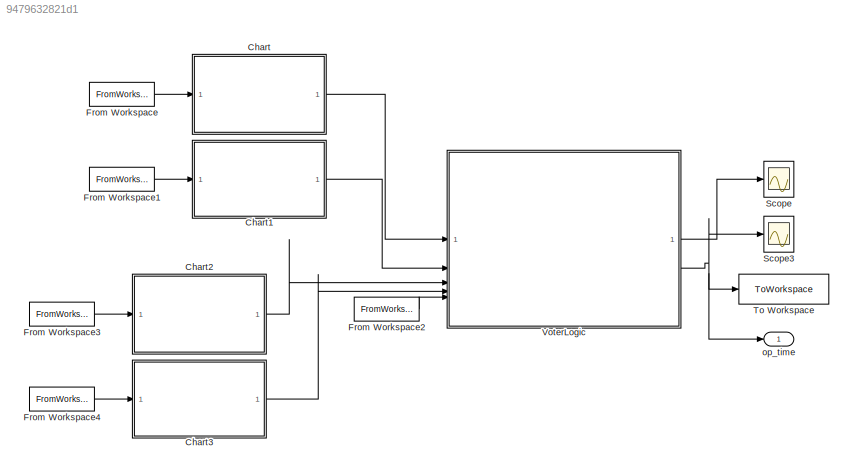
MODEL slx_9479632821d1
KIND model
CONFIG AbsTol = auto
CONFIG EnableMultiTasking = off
CONFIG FixedStep = auto
CONFIG MaxStep = auto
CONFIG MinStep = auto
CONFIG RelTol = 1e-3
CONFIG SampleTimeConstraint = Unconstrained
CONFIG SolverName = VariableStepAuto
CONFIG StartTime = 0.0
CONFIG StopTime = 100.0
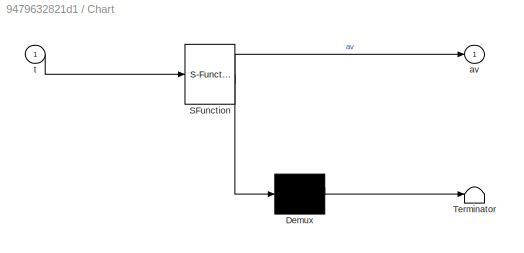
BLOCK [SubSystem] Chart
  ErrorFcn = Stateflow.Translate.translate
  PermitHierarchicalResolution = ExplicitOnly
  SFBlockType = Chart
  TreatAsAtomicUnit = on
BLOCK [Demux] Chart/ Demux 
  Outputs = 1
BLOCK [S-Function] Chart/ SFunction 
  EnableBusSupport = on
  FunctionName = sf_sfun
  PortCounts = [1 2]
  SFcnIsStateOwnerBlock = off
  SFunctionDeploymentMode = off
  Tag = Stateflow S-Function 1
BLOCK [Terminator] Chart/ Terminator 
BLOCK [Outport] Chart/av
BLOCK [Inport] Chart/t
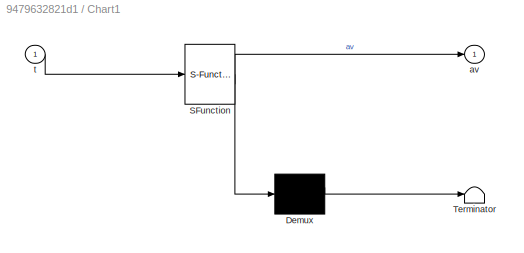
BLOCK [SubSystem] Chart1
  ErrorFcn = Stateflow.Translate.translate
  PermitHierarchicalResolution = ExplicitOnly
  SFBlockType = Chart
  TreatAsAtomicUnit = on
BLOCK [Demux] Chart1/ Demux 
  Outputs = 1
BLOCK [S-Function] Chart1/ SFunction 
  EnableBusSupport = on
  FunctionName = sf_sfun
  PortCounts = [1 2]
  SFcnIsStateOwnerBlock = off
  SFunctionDeploymentMode = off
  Tag = Stateflow S-Function 2
BLOCK [Terminator] Chart1/ Terminator 
BLOCK [Outport] Chart1/av
BLOCK [Inport] Chart1/t
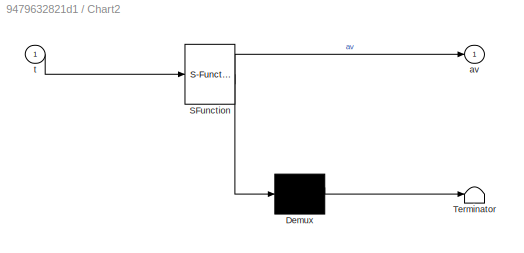
BLOCK [SubSystem] Chart2
  ErrorFcn = Stateflow.Translate.translate
  PermitHierarchicalResolution = ExplicitOnly
  SFBlockType = Chart
  TreatAsAtomicUnit = on
BLOCK [Demux] Chart2/ Demux 
  Outputs = 1
BLOCK [S-Function] Chart2/ SFunction 
  EnableBusSupport = on
  FunctionName = sf_sfun
  PortCounts = [1 2]
  SFcnIsStateOwnerBlock = off
  SFunctionDeploymentMode = off
  Tag = Stateflow S-Function 4
BLOCK [Terminator] Chart2/ Terminator 
BLOCK [Outport] Chart2/av
BLOCK [Inport] Chart2/t
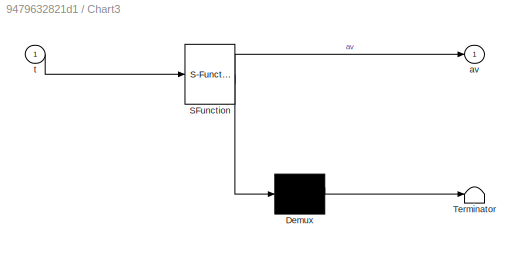
BLOCK [SubSystem] Chart3
  ErrorFcn = Stateflow.Translate.translate
  PermitHierarchicalResolution = ExplicitOnly
  SFBlockType = Chart
  TreatAsAtomicUnit = on
BLOCK [Demux] Chart3/ Demux 
  Outputs = 1
BLOCK [S-Function] Chart3/ SFunction 
  EnableBusSupport = on
  FunctionName = sf_sfun
  PortCounts = [1 2]
  SFcnIsStateOwnerBlock = off
  SFunctionDeploymentMode = off
  Tag = Stateflow S-Function 5
BLOCK [Terminator] Chart3/ Terminator 
BLOCK [Outport] Chart3/av
BLOCK [Inport] Chart3/t
BLOCK [FromWorkspace] From Workspace
  SampleTime = -1
  VariableName = failtime_1
BLOCK [FromWorkspace] From Workspace1
  SampleTime = -1
  VariableName = failtime_2
BLOCK [FromWorkspace] From Workspace2
  SampleTime = -1
  VariableName = failtime_3
BLOCK [FromWorkspace] From Workspace3
  SampleTime = -1
  VariableName = failtime_5
BLOCK [FromWorkspace] From Workspace4
  SampleTime = -1
  VariableName = failtime_4
BLOCK [Scope] Scope
  Floating = off
  NumInputPorts = 1
  ScopeSpecificationString = Simulink.scopes.TimeScopeBlockCfg('CurrentConfiguration', extmgr.ConfigurationSet(extmgr.Configuration('Core','General UI',true),extmgr.Configuration('Core','Source UI',true),extmgr.Configuration('Sources','WiredSimulink',true),extmgr.Configuration('Visuals','Time Domain',true,'SerializedDisplays',{struct('MinYLimReal','-0.125','MaxYLimReal','1.125','YLabelReal','','MinYLimMag','0.00000','MaxYLimM...<+1384ch>
BLOCK [Scope] Scope3
  Floating = off
  NumInputPorts = 1
  ScopeSpecificationString = Simulink.scopes.TimeScopeBlockCfg('CurrentConfiguration', extmgr.ConfigurationSet(extmgr.Configuration('Core','General UI',true),extmgr.Configuration('Core','Source UI',true),extmgr.Configuration('Sources','WiredSimulink',true,'DataLoggingVariableName','ScopeData1'),extmgr.Configuration('Visuals','Time Domain',true,'SerializedDisplays',{struct('MinYLimReal','-2.97141','MaxYLimReal','26.7427','YLab...<+1412ch>
BLOCK [ToWorkspace] To Workspace
  FixptAsFi = on
  MaxDataPoints = inf
  SampleTime = -1
  SaveFormat = Timeseries
  VariableName = op_time
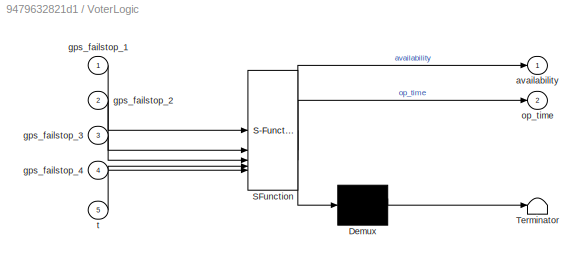
BLOCK [SubSystem] VoterLogic
  ErrorFcn = Stateflow.Translate.translate
  PermitHierarchicalResolution = ExplicitOnly
  SFBlockType = Chart
  TreatAsAtomicUnit = on
BLOCK [Demux] VoterLogic/ Demux 
  Outputs = 1
BLOCK [S-Function] VoterLogic/ SFunction 
  EnableBusSupport = on
  FunctionName = sf_sfun
  PortCounts = [5 3]
  SFcnIsStateOwnerBlock = off
  SFunctionDeploymentMode = off
  Tag = Stateflow S-Function 3
BLOCK [Terminator] VoterLogic/ Terminator 
BLOCK [Outport] VoterLogic/availability
BLOCK [Inport] VoterLogic/gps_failstop_1
BLOCK [Inport] VoterLogic/gps_failstop_2
  Port = 2
BLOCK [Inport] VoterLogic/gps_failstop_3
  Port = 3
BLOCK [Inport] VoterLogic/gps_failstop_4
  Port = 4
BLOCK [Outport] VoterLogic/op_time
  Port = 2
BLOCK [Inport] VoterLogic/t
  Port = 5
BLOCK [Outport] op_time
LINE Chart1:1 -> VoterLogic:2
LINE Chart2:1 -> VoterLogic:3
LINE Chart3:1 -> VoterLogic:4
LINE Chart:1 -> VoterLogic:1
LINE From Workspace1:1 -> Chart1:1
LINE From Workspace2:1 -> VoterLogic:5
LINE From Workspace3:1 -> Chart2:1
LINE From Workspace4:1 -> Chart3:1
LINE From Workspace:1 -> Chart:1
LINE VoterLogic:1 -> Scope:1
NET VoterLogic:2 -> Scope3:1, To Workspace:1, op_time:1
note: NET lines group one-source signal fan-out (src -> all destinations, sorted); 1:1 wires keep LINE
CHART VoterLogic states=3 transitions=4
  STATE_LABEL 'reg2'
  STATE_LABEL 'Operation\nexit:\nop_time=temporalCount(sec)'
  STATE_LABEL 'Failstop\nentry: availability=0;\n'
  STATE_LABEL '{availability=1}'
  STATE_LABEL 'after(t,sec)'
  STATE_LABEL '[gps_failstop_1==0 && gps_failstop_2==0 && gps_failstop_3==0 && gps_failstop_4==0]'
  STATE_LABEL 'Operation\nexit:\nop_time=temporalCount(sec)'
  STATE_LABEL 'Failstop\nentry: availability=0;\n'
CHART Chart2 states=2 transitions=2
  STATE_LABEL 'operational\nentry:\nav=1'
  STATE_LABEL 'failstop\nentry:\nav=0;'
CHART Chart3 states=2 transitions=2
  STATE_LABEL 'operational\nentry:\nav=1;'
  STATE_LABEL 'failstop\nentry:\nav=0;'
CHART Chart states=2 transitions=2
  STATE_LABEL 'operational\nentry:\nav=1'
  STATE_LABEL 'failstop\nentry:\nav=0;'
CHART Chart1 states=2 transitions=2
  STATE_LABEL 'operational\nentry:\nav=1;'
  STATE_LABEL 'failstop\nentry:\nav=0;'
CHART  states=0 transitions=0
CHART  states=0 transitions=0
CHART  states=0 transitions=0
CHART  states=0 transitions=0
CHART  states=0 transitions=0
